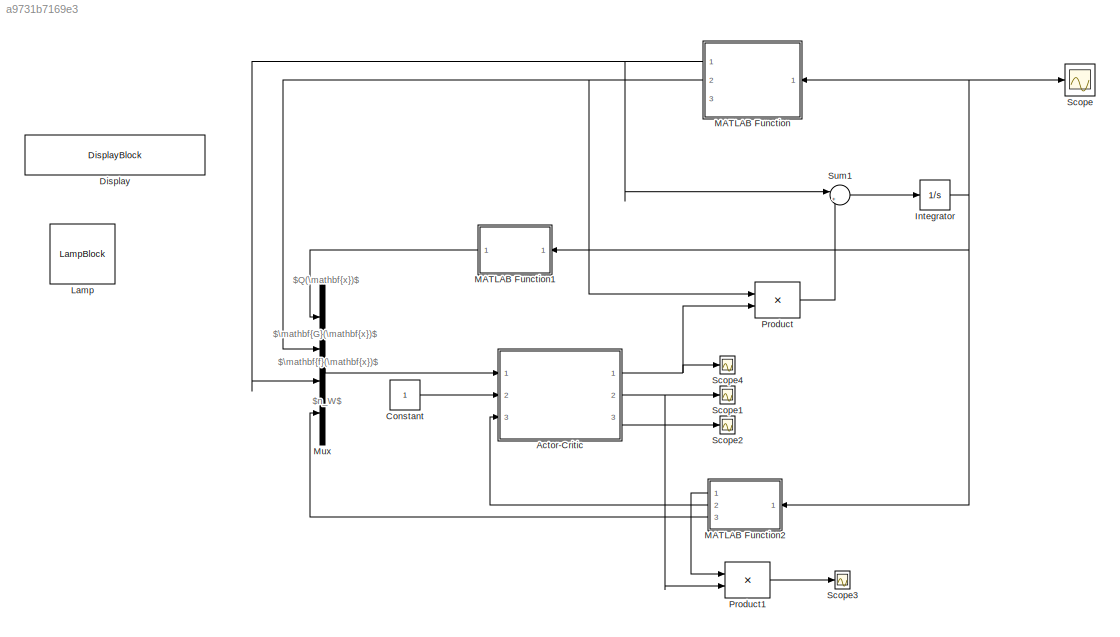
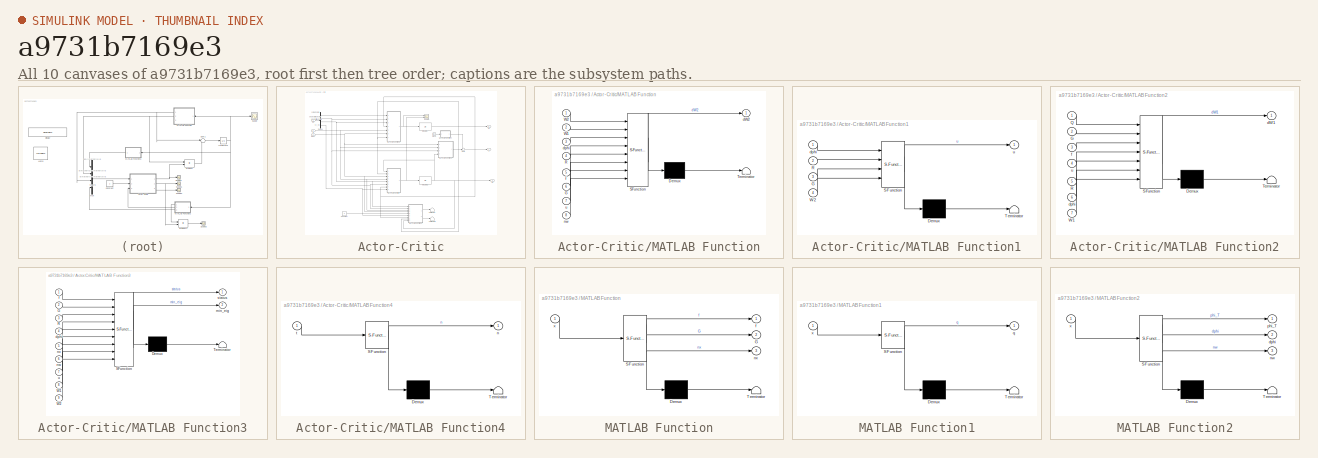
[diagram: thumbnail index - all 10 canvases of the model, root first then tree order]
MODEL slx_a9731b7169e3
KIND model
CONFIG AbsTol = auto
CONFIG EnableMultiTasking = off
CONFIG FixedStep = 1e-4
CONFIG MaxStep = auto
CONFIG MinStep = auto
CONFIG RelTol = 1e-3
CONFIG SampleTimeConstraint = Unconstrained
CONFIG Solver = VariableStepAuto
CONFIG SolverName = VariableStepAuto
CONFIG StartTime = 0.0
CONFIG StopTime = 800
BLOCK [SubSystem] Actor-Critic
  Ports = [3, 3]
  RequestExecContextInheritance = off
BLOCK [Clock] Actor-Critic/Clock
  Decimation = 1
BLOCK [Constant] Actor-Critic/Constant
  Value = 3
BLOCK [Demux] Actor-Critic/Demux
  DisplayOption = bar
  Ports = [1, 4]
BLOCK [Inport] Actor-Critic/Info
  IconDisplay = Port number
BLOCK [Integrator] Actor-Critic/Integrator
  InitialCondition = ones(6,1)
  Ports = [1, 1]
BLOCK [Integrator] Actor-Critic/Integrator1
  InitialCondition = ones(6,1)
  Ports = [1, 1]
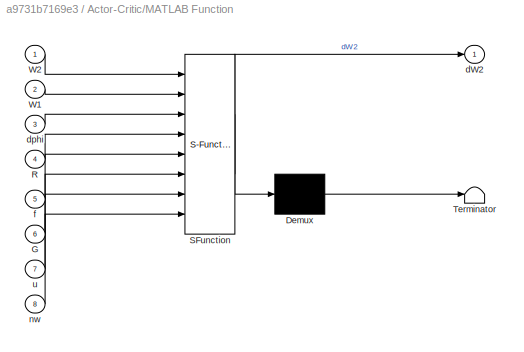
BLOCK [SubSystem] Actor-Critic/MATLAB Function
  ErrorFcn = Stateflow.Translate.translate
  PermitHierarchicalResolution = ExplicitOnly
  Ports = [8, 1]
  RequestExecContextInheritance = off
  SFBlockType = MATLAB Function
  TreatAsAtomicUnit = on
BLOCK [Demux] Actor-Critic/MATLAB Function/ Demux 
  Outputs = 1
  Ports = [1, 1]
BLOCK [S-Function] Actor-Critic/MATLAB Function/ SFunction 
  EnableBusSupport = on
  FunctionName = sf_sfun
  PortCounts = [8 2]
  Ports = [8, 2]
  SFcnIsStateOwnerBlock = off
  SFunctionDeploymentMode = off
  Tag = Stateflow S-Function 4
BLOCK [Terminator] Actor-Critic/MATLAB Function/ Terminator 
BLOCK [Inport] Actor-Critic/MATLAB Function/G
  IconDisplay = Port number
  Port = 6
BLOCK [Inport] Actor-Critic/MATLAB Function/R
  IconDisplay = Port number
  Port = 4
BLOCK [Inport] Actor-Critic/MATLAB Function/W1
  IconDisplay = Port number
  Port = 2
BLOCK [Inport] Actor-Critic/MATLAB Function/W2
  IconDisplay = Port number
BLOCK [Outport] Actor-Critic/MATLAB Function/dW2
  IconDisplay = Port number
BLOCK [Inport] Actor-Critic/MATLAB Function/dphi
  IconDisplay = Port number
  Port = 3
BLOCK [Inport] Actor-Critic/MATLAB Function/f
  IconDisplay = Port number
  Port = 5
BLOCK [Inport] Actor-Critic/MATLAB Function/nw
  IconDisplay = Port number
  Port = 8
BLOCK [Inport] Actor-Critic/MATLAB Function/u
  IconDisplay = Port number
  Port = 7
BLOCK [SubSystem] Actor-Critic/MATLAB Function1
  ErrorFcn = Stateflow.Translate.translate
  PermitHierarchicalResolution = ExplicitOnly
  Ports = [4, 1]
  RequestExecContextInheritance = off
  SFBlockType = MATLAB Function
  TreatAsAtomicUnit = on
BLOCK [Demux] Actor-Critic/MATLAB Function1/ Demux 
  Outputs = 1
  Ports = [1, 1]
BLOCK [S-Function] Actor-Critic/MATLAB Function1/ SFunction 
  EnableBusSupport = on
  FunctionName = sf_sfun
  PortCounts = [4 2]
  Ports = [4, 2]
  SFcnIsStateOwnerBlock = off
  SFunctionDeploymentMode = off
  Tag = Stateflow S-Function 5
BLOCK [Terminator] Actor-Critic/MATLAB Function1/ Terminator 
BLOCK [Inport] Actor-Critic/MATLAB Function1/G
  IconDisplay = Port number
  Port = 3
BLOCK [Inport] Actor-Critic/MATLAB Function1/R
  IconDisplay = Port number
  Port = 2
BLOCK [Inport] Actor-Critic/MATLAB Function1/W2
  IconDisplay = Port number
  Port = 4
BLOCK [Inport] Actor-Critic/MATLAB Function1/dphi
  IconDisplay = Port number
BLOCK [Outport] Actor-Critic/MATLAB Function1/u
  IconDisplay = Port number
BLOCK [SubSystem] Actor-Critic/MATLAB Function2
  ErrorFcn = Stateflow.Translate.translate
  PermitHierarchicalResolution = ExplicitOnly
  Ports = [7, 1]
  RequestExecContextInheritance = off
  SFBlockType = MATLAB Function
  TreatAsAtomicUnit = on
BLOCK [Demux] Actor-Critic/MATLAB Function2/ Demux 
  Outputs = 1
  Ports = [1, 1]
BLOCK [S-Function] Actor-Critic/MATLAB Function2/ SFunction 
  EnableBusSupport = on
  FunctionName = sf_sfun
  PortCounts = [7 2]
  Ports = [7, 2]
  SFcnIsStateOwnerBlock = off
  SFunctionDeploymentMode = off
  Tag = Stateflow S-Function 3
BLOCK [Terminator] Actor-Critic/MATLAB Function2/ Terminator 
BLOCK [Inport] Actor-Critic/MATLAB Function2/G
  IconDisplay = Port number
  Port = 2
BLOCK [Inport] Actor-Critic/MATLAB Function2/Q
  IconDisplay = Port number
BLOCK [Inport] Actor-Critic/MATLAB Function2/R
  IconDisplay = Port number
  Port = 5
BLOCK [Inport] Actor-Critic/MATLAB Function2/W1
  IconDisplay = Port number
  Port = 7
BLOCK [Outport] Actor-Critic/MATLAB Function2/dW1
  IconDisplay = Port number
BLOCK [Inport] Actor-Critic/MATLAB Function2/dphi
  IconDisplay = Port number
  Port = 6
BLOCK [Inport] Actor-Critic/MATLAB Function2/f
  IconDisplay = Port number
  Port = 3
BLOCK [Inport] Actor-Critic/MATLAB Function2/u
  IconDisplay = Port number
  Port = 4
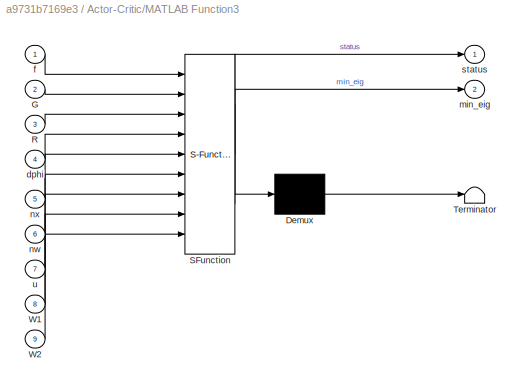
BLOCK [SubSystem] Actor-Critic/MATLAB Function3
  ErrorFcn = Stateflow.Translate.translate
  PermitHierarchicalResolution = ExplicitOnly
  Ports = [9, 2]
  RequestExecContextInheritance = off
  SFBlockType = MATLAB Function
  TreatAsAtomicUnit = on
BLOCK [Demux] Actor-Critic/MATLAB Function3/ Demux 
  Outputs = 1
  Ports = [1, 1]
BLOCK [S-Function] Actor-Critic/MATLAB Function3/ SFunction 
  EnableBusSupport = on
  FunctionName = sf_sfun
  PortCounts = [9 3]
  Ports = [9, 3]
  SFcnIsStateOwnerBlock = off
  SFunctionDeploymentMode = off
  Tag = Stateflow S-Function 7
BLOCK [Terminator] Actor-Critic/MATLAB Function3/ Terminator 
BLOCK [Inport] Actor-Critic/MATLAB Function3/G
  IconDisplay = Port number
  Port = 2
BLOCK [Inport] Actor-Critic/MATLAB Function3/R
  IconDisplay = Port number
  Port = 3
BLOCK [Inport] Actor-Critic/MATLAB Function3/W1
  IconDisplay = Port number
  Port = 8
BLOCK [Inport] Actor-Critic/MATLAB Function3/W2
  IconDisplay = Port number
  Port = 9
BLOCK [Inport] Actor-Critic/MATLAB Function3/dphi
  IconDisplay = Port number
  Port = 4
BLOCK [Inport] Actor-Critic/MATLAB Function3/f
  IconDisplay = Port number
BLOCK [Outport] Actor-Critic/MATLAB Function3/min_eig
  IconDisplay = Port number
  Port = 2
BLOCK [Inport] Actor-Critic/MATLAB Function3/nw
  IconDisplay = Port number
  Port = 6
BLOCK [Inport] Actor-Critic/MATLAB Function3/nx
  IconDisplay = Port number
  Port = 5
BLOCK [Outport] Actor-Critic/MATLAB Function3/status
  IconDisplay = Port number
BLOCK [Inport] Actor-Critic/MATLAB Function3/u
  IconDisplay = Port number
  Port = 7
BLOCK [SubSystem] Actor-Critic/MATLAB Function4
  ErrorFcn = Stateflow.Translate.translate
  PermitHierarchicalResolution = ExplicitOnly
  Ports = [1, 1]
  RequestExecContextInheritance = off
  SFBlockType = MATLAB Function
  TreatAsAtomicUnit = on
BLOCK [Demux] Actor-Critic/MATLAB Function4/ Demux 
  Outputs = 1
  Ports = [1, 1]
BLOCK [S-Function] Actor-Critic/MATLAB Function4/ SFunction 
  EnableBusSupport = on
  FunctionName = sf_sfun
  PortCounts = [1 2]
  Ports = [1, 2]
  SFcnIsStateOwnerBlock = off
  SFunctionDeploymentMode = off
  Tag = Stateflow S-Function 8
BLOCK [Terminator] Actor-Critic/MATLAB Function4/ Terminator 
BLOCK [Outport] Actor-Critic/MATLAB Function4/n
  IconDisplay = Port number
BLOCK [Inport] Actor-Critic/MATLAB Function4/t
  IconDisplay = Port number
BLOCK [Inport] Actor-Critic/R
  IconDisplay = Port number
  Port = 2
BLOCK [Scope] Actor-Critic/Scope
  Floating = off
  NumInputPorts = 2
  Ports = [2]
  ScopeSpecificationString = Simulink.scopes.TimeScopeBlockCfg('CurrentConfiguration', extmgr.ConfigurationSet(extmgr.Configuration('Core','General UI',true),extmgr.Configuration('Core','Source UI',true),extmgr.Configuration('Sources','WiredSimulink',true),extmgr.Configuration('Visuals','Time Domain',true,'SerializedDisplays',{struct('MinYLimReal','-0.52879','MaxYLimReal','0.1058','YLabelReal','','MinYLimMag','0.00000','MaxYL...<+1785ch>
BLOCK [Sum] Actor-Critic/Sum
  IconShape = round
  InputSameDT = off
  Inputs = ++|
  OutDataTypeStr = Inherit: Inherit via internal rule
  Ports = [2, 1]
  SaturateOnIntegerOverflow = off
BLOCK [Terminator] Actor-Critic/Terminator
BLOCK [Terminator] Actor-Critic/Terminator1
BLOCK [Outport] Actor-Critic/W1
  IconDisplay = Port number
  Port = 2
BLOCK [Outport] Actor-Critic/W2
  IconDisplay = Port number
  Port = 3
BLOCK [Inport] Actor-Critic/dphi
  IconDisplay = Port number
  Port = 3
BLOCK [Outport] Actor-Critic/u
  IconDisplay = Port number
BLOCK [Constant] Constant
BLOCK [DisplayBlock] Display
  Format = short
  LabelPosition = Hide
  Transparency = 1
BLOCK [Integrator] Integrator
  InitialCondition = ones(3,1)
  Ports = [1, 1]
BLOCK [LampBlock] Lamp
  LabelPosition = Hide
BLOCK [SubSystem] MATLAB Function
  ErrorFcn = Stateflow.Translate.translate
  PermitHierarchicalResolution = ExplicitOnly
  Ports = [1, 3]
  RequestExecContextInheritance = off
  SFBlockType = MATLAB Function
  TreatAsAtomicUnit = on
BLOCK [Demux] MATLAB Function/ Demux 
  Outputs = 1
  Ports = [1, 1]
BLOCK [S-Function] MATLAB Function/ SFunction 
  EnableBusSupport = on
  FunctionName = sf_sfun
  PortCounts = [1 4]
  Ports = [1, 4]
  SFcnIsStateOwnerBlock = off
  SFunctionDeploymentMode = off
  Tag = Stateflow S-Function 2
BLOCK [Terminator] MATLAB Function/ Terminator 
BLOCK [Outport] MATLAB Function/G
  IconDisplay = Port number
  Port = 2
BLOCK [Outport] MATLAB Function/f
  IconDisplay = Port number
BLOCK [Outport] MATLAB Function/nx
  IconDisplay = Port number
  Port = 3
BLOCK [Inport] MATLAB Function/x
  IconDisplay = Port number
BLOCK [SubSystem] MATLAB Function1
  ErrorFcn = Stateflow.Translate.translate
  PermitHierarchicalResolution = ExplicitOnly
  Ports = [1, 1]
  RequestExecContextInheritance = off
  SFBlockType = MATLAB Function
  TreatAsAtomicUnit = on
BLOCK [Demux] MATLAB Function1/ Demux 
  Outputs = 1
  Ports = [1, 1]
BLOCK [S-Function] MATLAB Function1/ SFunction 
  EnableBusSupport = on
  FunctionName = sf_sfun
  PortCounts = [1 2]
  Ports = [1, 2]
  SFcnIsStateOwnerBlock = off
  SFunctionDeploymentMode = off
  Tag = Stateflow S-Function 1
BLOCK [Terminator] MATLAB Function1/ Terminator 
BLOCK [Outport] MATLAB Function1/q
  IconDisplay = Port number
BLOCK [Inport] MATLAB Function1/x
  IconDisplay = Port number
BLOCK [SubSystem] MATLAB Function2
  ErrorFcn = Stateflow.Translate.translate
  PermitHierarchicalResolution = ExplicitOnly
  Ports = [1, 3]
  RequestExecContextInheritance = off
  SFBlockType = MATLAB Function
  TreatAsAtomicUnit = on
BLOCK [Demux] MATLAB Function2/ Demux 
  Outputs = 1
  Ports = [1, 1]
BLOCK [S-Function] MATLAB Function2/ SFunction 
  EnableBusSupport = on
  FunctionName = sf_sfun
  PortCounts = [1 4]
  Ports = [1, 4]
  SFcnIsStateOwnerBlock = off
  SFunctionDeploymentMode = off
  Tag = Stateflow S-Function 6
BLOCK [Terminator] MATLAB Function2/ Terminator 
BLOCK [Outport] MATLAB Function2/dphi
  IconDisplay = Port number
  Port = 2
BLOCK [Outport] MATLAB Function2/nw
  IconDisplay = Port number
  Port = 3
BLOCK [Outport] MATLAB Function2/phi_T
  IconDisplay = Port number
BLOCK [Inport] MATLAB Function2/x
  IconDisplay = Port number
BLOCK [Mux] Mux
  DisplayOption = bar
  Ports = [4, 1]
BLOCK [Product] Product
  InputSameDT = off
  Multiplication = Matrix(*)
  OutDataTypeStr = Inherit: Inherit via internal rule
  Ports = [2, 1]
  RndMeth = Floor
  SaturateOnIntegerOverflow = off
BLOCK [Product] Product1
  InputSameDT = off
  Multiplication = Matrix(*)
  OutDataTypeStr = Inherit: Inherit via internal rule
  Ports = [2, 1]
  RndMeth = Floor
  SaturateOnIntegerOverflow = off
BLOCK [Scope] Scope
  Floating = off
  NumInputPorts = 1
  Ports = [1]
  ScopeSpecificationString = Simulink.scopes.TimeScopeBlockCfg('CurrentConfiguration', extmgr.ConfigurationSet(extmgr.Configuration('Core','General UI',true),extmgr.Configuration('Core','Source UI',true),extmgr.Configuration('Sources','WiredSimulink',true,'DataLoggingVariableName','ScopeData1'),extmgr.Configuration('Visuals','Time Domain',true,'SerializedDisplays',{struct('MinYLimReal','-35.07503','MaxYLimReal','67.47579','YL...<+1554ch>
BLOCK [Scope] Scope1
  Floating = off
  NumInputPorts = 1
  Ports = [1]
  ScopeSpecificationString = Simulink.scopes.TimeScopeBlockCfg('CurrentConfiguration', extmgr.ConfigurationSet(extmgr.Configuration('Core','General UI',true),extmgr.Configuration('Core','Source UI',true),extmgr.Configuration('Sources','WiredSimulink',true,'DataLoggingVariableName','ScopeData2'),extmgr.Configuration('Visuals','Time Domain',true,'SerializedDisplays',{struct('MinYLimReal','-7.81031','MaxYLimReal','33.71249','YLa...<+1816ch>
BLOCK [Scope] Scope2
  Floating = off
  NumInputPorts = 1
  Ports = [1]
  ScopeSpecificationString = Simulink.scopes.TimeScopeBlockCfg('CurrentConfiguration', extmgr.ConfigurationSet(extmgr.Configuration('Core','General UI',true),extmgr.Configuration('Core','Source UI',true),extmgr.Configuration('Sources','WiredSimulink',true,'DataLoggingVariableName','ScopeData1'),extmgr.Configuration('Visuals','Time Domain',true,'SerializedDisplays',{struct('MinYLimReal','-6.77287','MaxYLimReal','3.05089','YLab...<+1777ch>
BLOCK [Scope] Scope3
  Floating = off
  NumInputPorts = 1
  Ports = [1]
  ScopeSpecificationString = Simulink.scopes.TimeScopeBlockCfg('CurrentConfiguration', extmgr.ConfigurationSet(extmgr.Configuration('Core','General UI',true),extmgr.Configuration('Core','Source UI',true),extmgr.Configuration('Sources','WiredSimulink',true,'DataLoggingVariableName','ScopeData1'),extmgr.Configuration('Visuals','Time Domain',true,'SerializedDisplays',{struct('MinYLimReal','-8.67715','MaxYLimReal','8.17421','YLab...<+1777ch>
BLOCK [Scope] Scope4
  Floating = off
  NumInputPorts = 1
  Ports = [1]
  ScopeSpecificationString = Simulink.scopes.TimeScopeBlockCfg('CurrentConfiguration', extmgr.ConfigurationSet(extmgr.Configuration('Core','General UI',true),extmgr.Configuration('Core','Source UI',true),extmgr.Configuration('Sources','WiredSimulink',true,'DataLoggingVariableName','ScopeData2'),extmgr.Configuration('Visuals','Time Domain',true,'SerializedDisplays',{struct('MinYLimReal','-58.33388','MaxYLimReal','94.41774','YL...<+1783ch>
BLOCK [Sum] Sum1
  IconShape = round
  InputSameDT = off
  Inputs = |++
  OutDataTypeStr = Inherit: Inherit via internal rule
  Ports = [2, 1]
  SaturateOnIntegerOverflow = off
ANNOTATION (root): $Q(\mathbf{x})$
ANNOTATION (root): $\mathbf{G}(\mathbf{x})$
ANNOTATION (root): $\mathbf{f}(\mathbf{x})$
ANNOTATION (root): $n_W$
ANNOTATION Actor-Critic: $Q(\mathbf{x})$
ANNOTATION Actor-Critic: $\mathbf{G}(\mathbf{x})$
ANNOTATION Actor-Critic: $\mathbf{f}(\mathbf{x})$
ANNOTATION Actor-Critic: $n_W$
LINE Actor-Critic/Clock:1 -> Actor-Critic/MATLAB Function4:1
LINE Actor-Critic/Constant:1 -> Actor-Critic/MATLAB Function3:5
LINE Actor-Critic/Demux:1 -> Actor-Critic/MATLAB Function2:1
NET Actor-Critic/Demux:2 -> Actor-Critic/MATLAB Function1:3, Actor-Critic/MATLAB Function2:2, Actor-Critic/MATLAB Function3:2, Actor-Critic/MATLAB Function:6
NET Actor-Critic/Demux:3 -> Actor-Critic/MATLAB Function2:3, Actor-Critic/MATLAB Function3:1, Actor-Critic/MATLAB Function:5
NET Actor-Critic/Demux:4 -> Actor-Critic/MATLAB Function3:6, Actor-Critic/MATLAB Function:8
LINE Actor-Critic/Info:1 -> Actor-Critic/Demux:1
NET Actor-Critic/Integrator1:1 -> Actor-Critic/MATLAB Function1:4, Actor-Critic/MATLAB Function3:9, Actor-Critic/MATLAB Function:1, Actor-Critic/W2:1
NET Actor-Critic/Integrator:1 -> Actor-Critic/MATLAB Function2:7, Actor-Critic/MATLAB Function3:8, Actor-Critic/MATLAB Function:2, Actor-Critic/W1:1
LINE Actor-Critic/MATLAB Function1:1 -> Actor-Critic/Sum:2
NET Actor-Critic/MATLAB Function2:1 -> Actor-Critic/Integrator:1, Actor-Critic/Scope:1
LINE Actor-Critic/MATLAB Function3:1 -> Actor-Critic/Terminator:1
LINE Actor-Critic/MATLAB Function3:2 -> Actor-Critic/Terminator1:1
LINE Actor-Critic/MATLAB Function4:1 -> Actor-Critic/Sum:1
NET Actor-Critic/MATLAB Function:1 -> Actor-Critic/Integrator1:1, Actor-Critic/Scope:2
NET Actor-Critic/R:1 -> Actor-Critic/MATLAB Function1:2, Actor-Critic/MATLAB Function2:5, Actor-Critic/MATLAB Function3:3, Actor-Critic/MATLAB Function:4
NET Actor-Critic/Sum:1 -> Actor-Critic/MATLAB Function2:4, Actor-Critic/MATLAB Function3:7, Actor-Critic/MATLAB Function:7, Actor-Critic/u:1
NET Actor-Critic/dphi:1 -> Actor-Critic/MATLAB Function1:1, Actor-Critic/MATLAB Function2:6, Actor-Critic/MATLAB Function3:4, Actor-Critic/MATLAB Function:3
NET Actor-Critic:1 -> Product:2, Scope4:1
NET Actor-Critic:2 -> Product1:2, Scope1:1
LINE Actor-Critic:3 -> Scope2:1
LINE Constant:1 -> Actor-Critic:2
NET Integrator:1 -> MATLAB Function1:1, MATLAB Function2:1, MATLAB Function:1, Scope:1
LINE MATLAB Function1:1 -> Mux:1
LINE MATLAB Function2:1 -> Product1:1
LINE MATLAB Function2:2 -> Actor-Critic:3
LINE MATLAB Function2:3 -> Mux:4
NET MATLAB Function:1 -> Mux:3, Sum1:1
NET MATLAB Function:2 -> Mux:2, Product:1
LINE Mux:1 -> Actor-Critic:1
LINE Product1:1 -> Scope3:1
LINE Product:1 -> Sum1:2
LINE Sum1:1 -> Integrator:1
note: NET lines group one-source signal fan-out (src -> all destinations, sorted); 1:1 wires keep LINE
CHART MATLAB Function1 states=1 transitions=1
  STATE_LABEL 'eML_blk_kernel()'
  STATE_LABEL "SCRIPT:\nfunction q = Q(x)\n    q = 10*x'*x;\n"
CHART MATLAB Function states=1 transitions=1
  STATE_LABEL 'eML_blk_kernel()'
  STATE_LABEL 'SCRIPT:\nfunction [f, G, nx] = dynamics(x)\n    nx = 3;\n    \n%     x1 = x(1,1); x2 = x(2,1);\n    \n%     f = [-x1 + x2;\n%          -0.5*x1 - 0.5*x2*(1 - (cos(2*x1) + 2)^2)];\n%     \n%     G = [0; cos(2*x1) + 2];\n    A = [-1.01887,  0.90506, -0.00215;\n      0.82225, -1.07741, -0.17555;\n      0      ,  0      , -1];\n    f = A*x;\n    \n    G = [0;0;1];\n'
CHART Actor-Critic/MATLAB Function2 states=1 transitions=1
  STATE_LABEL 'eML_blk_kernel()'
  STATE_LABEL "SCRIPT:\nfunction dW1 = Critic(Q, G, f, u, R, dphi, W1)\n    critic_lr = 1;\n\n    sig_2 = dphi*(f + G*u);\n    dW1 = -critic_lr*(sig_2/(sig_2'*sig_2 + 1)^2)*(sig_2'*W1 + Q + u'*R*u);"
CHART Actor-Critic/MATLAB Function states=1 transitions=1
  STATE_LABEL 'eML_blk_kernel()'
  STATE_LABEL "SCRIPT:\nfunction dW2 = Actor(W2, W1, dphi, R, f, G, u, nw)\n    actor_lr = 0.1;\n    F2 = 4*eye(nw);\n    F1 = 0.1*ones(nw,1);\n    \n    sig_2 = dphi*(f + G*u);\n    D1 = dphi*G*(inv(R))*(G')*dphi';\n    m = sig_2/(sig_2'*sig_2 + 1)^2;\n    sig2_bar = sig_2/(sig_2'*sig_2 + 1);\n    dW2 = -actor_lr *((F2*W2 - F1*sig2_bar'*W1) - 0.25*D1*W2*m'*W1);"
CHART Actor-Critic/MATLAB Function1 states=1 transitions=1
  STATE_LABEL 'eML_blk_kernel()'
  STATE_LABEL "SCRIPT:\nfunction u = control_policy(dphi, R, G, W2)\n    u = -0.5*(inv(R))*((G)')*(dphi')*W2;\n"
CHART MATLAB Function2 states=1 transitions=1
  STATE_LABEL 'eML_blk_kernel()'
  STATE_LABEL "SCRIPT:\nfunction [phi_T, dphi, nw] = basis(x)\n    nw = 6;\n\n    x1 = x(1,1); x2 = x(2,1); x3 = x(3);\n    \n%     phi = [x1^2; x1*x2; x2^2];\n%     dphi = [2*x1, 0; x2, x1; 0, 2*x2];\n    phi_T = [x1^2; x1*x2; x2^2; x2*x3; x3^2; x3*x1]';\n    dphi = [2*x1,    0,    0; \n              x2,   x1,    0; \n               0, 2*x2,    0; \n               0,   x3,   x2;\n               0,    0, 2*x3;\n              ...<+21ch>"
CHART Actor-Critic/MATLAB Function3 states=1 transitions=1
  STATE_LABEL 'eML_blk_kernel()'
  STATE_LABEL "SCRIPT:\nfunction [status, min_eig] = check(f, G, R, dphi, nx, nw, u, W1, W2)\n    q = 0.5;\n    F2 = 1*eye(nw);\n    F1 = 0*ones(nw,1);\n    \n    sig_2 = dphi*(f + G*u);\n    D1 = dphi*G*(inv(R))*(G)'*dphi';\n    ms = 1 + sig_2'*sig_2;\n    m = sig_2/(sig_2'*sig_2 + 1)^2;\n\n    M = [q*eye(nx), zeros(nx,1), zeros(nx, nw);\n         zeros(1,nx), 1, (-0.5*F1 - (1/(8*ms))*D1*W1)';\n         zeros(nw, nx), (-0.5...<+185ch>"
CHART Actor-Critic/MATLAB Function4 states=1 transitions=1
  STATE_LABEL 'eML_blk_kernel()'
  STATE_LABEL 'SCRIPT:\nfunction n = noise(t)\n    if t <= 700\n        n = 37*exp(-0.009*t)*(sin(t)^2*cos(t)+sin(2*t)^2*cos(0.1*t)+sin(-1.2*t)^2*cos(0.5*t)+sin(t)^5+sin(1.12*t)^2+cos(2.4*t)*sin(2.4*t)^3);\n    else\n        n = 0;\n    end\n'
